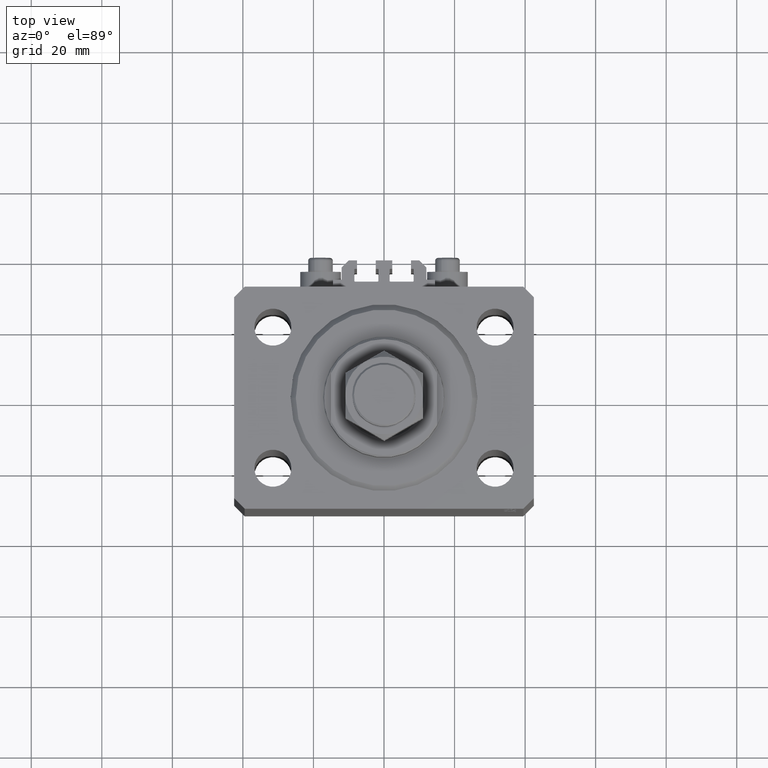
[diagram: clean part render]
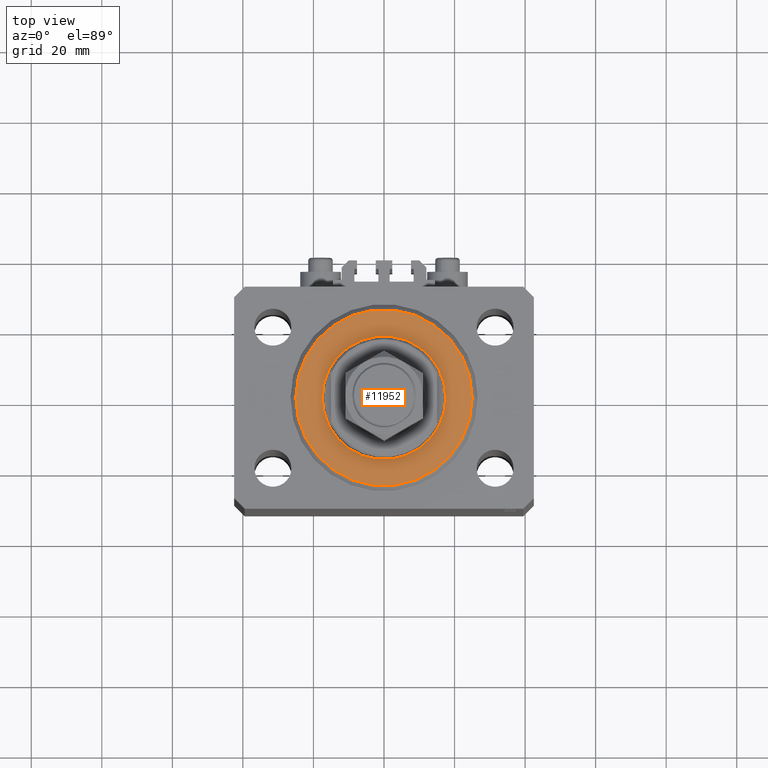
[diagram: same view with one face highlighted and labeled with its STEP entity id]
A machine part, top view. The second image highlights one B-rep face of the part: STEP entity #11952.
In plain terms, the highlighted planar face has unit normal (0, 0, -1).
Its self-contained STEP definition (entity closure, byte-faithful):
#239 = DIRECTION ( 'NONE',  ( 1.000000000000000000, 0.000000000000000000, 0.000000000000000000 ) ) ;
#512 = VERTEX_POINT ( 'NONE', #40431 ) ;
#2031 = VERTEX_POINT ( 'NONE', #5148 ) ;
#2597 = CIRCLE ( 'NONE', #44564, 24.99999999999995026 ) ;
#3345 = EDGE_CURVE ( 'NONE', #31605, #512, #19035, .T. ) ;
#3651 = PLANE ( 'NONE',  #32696 ) ;
#5148 = CARTESIAN_POINT ( 'NONE',  ( -17.50000000000000000, 2.143131898507868643E-15, 2.168404344971008868E-16 ) ) ;
#6029 = ORIENTED_EDGE ( 'NONE', *, *, #8869, .T. ) ;
#8869 = EDGE_CURVE ( 'NONE', #512, #31605, #2597, .T. ) ;
#9798 = EDGE_CURVE ( 'NONE', #2031, #34841, #34314, .T. ) ;
#10209 = DIRECTION ( 'NONE',  ( 1.000000000000000000, 0.000000000000000000, 0.000000000000000000 ) ) ;
#11044 = EDGE_LOOP ( 'NONE', ( #34057, #43450 ) ) ;
#11798 = DIRECTION ( 'NONE',  ( 1.000000000000000000, 0.000000000000000000, -0.000000000000000000 ) ) ;
#11952 = ADVANCED_FACE ( 'NONE', ( #34391, #26453 ), #3651, .F. ) ;
#15540 = CARTESIAN_POINT ( 'NONE',  ( 24.99999999999995026, 0.000000000000000000, 0.000000000000000000 ) ) ;
#15905 = AXIS2_PLACEMENT_3D ( 'NONE', #37198, #32762, #36464 ) ;
#18283 = CARTESIAN_POINT ( 'NONE',  ( 17.50000000000000000, 0.000000000000000000, 2.168404344971008868E-16 ) ) ;
#18629 = DIRECTION ( 'NONE',  ( -0.000000000000000000, -0.000000000000000000, -1.000000000000000000 ) ) ;
#19035 = CIRCLE ( 'NONE', #15905, 24.99999999999995026 ) ;
#19490 = CARTESIAN_POINT ( 'NONE',  ( 0.000000000000000000, 0.000000000000000000, 0.000000000000000000 ) ) ;
#23973 = EDGE_CURVE ( 'NONE', #34841, #2031, #27216, .T. ) ;
#25615 = AXIS2_PLACEMENT_3D ( 'NONE', #30722, #27238, #239 ) ;
#26453 = FACE_OUTER_BOUND ( 'NONE', #48466, .T. ) ;
#27216 = CIRCLE ( 'NONE', #25615, 17.50000000000000000 ) ;
#27238 = DIRECTION ( 'NONE',  ( 0.000000000000000000, 0.000000000000000000, 1.000000000000000000 ) ) ;
#30722 = CARTESIAN_POINT ( 'NONE',  ( 0.000000000000000000, 0.000000000000000000, 0.000000000000000000 ) ) ;
#31605 = VERTEX_POINT ( 'NONE', #15540 ) ;
#32696 = AXIS2_PLACEMENT_3D ( 'NONE', #19490, #45778, #11798 ) ;
#32762 = DIRECTION ( 'NONE',  ( -0.000000000000000000, -0.000000000000000000, -1.000000000000000000 ) ) ;
#33532 = CARTESIAN_POINT ( 'NONE',  ( 0.000000000000000000, 0.000000000000000000, 0.000000000000000000 ) ) ;
#34057 = ORIENTED_EDGE ( 'NONE', *, *, #23973, .T. ) ;
#34314 = CIRCLE ( 'NONE', #48564, 17.50000000000000000 ) ;
#34391 = FACE_BOUND ( 'NONE', #11044, .T. ) ;
#34841 = VERTEX_POINT ( 'NONE', #18283 ) ;
#36464 = DIRECTION ( 'NONE',  ( 1.000000000000000000, 0.000000000000000000, 0.000000000000000000 ) ) ;
#36759 = DIRECTION ( 'NONE',  ( 0.000000000000000000, 0.000000000000000000, 1.000000000000000000 ) ) ;
#37198 = CARTESIAN_POINT ( 'NONE',  ( 0.000000000000000000, 0.000000000000000000, 0.000000000000000000 ) ) ;
#40431 = CARTESIAN_POINT ( 'NONE',  ( -24.99999999999995026, 3.153465507804431248E-15, 0.000000000000000000 ) ) ;
#40751 = ORIENTED_EDGE ( 'NONE', *, *, #3345, .T. ) ;
#43450 = ORIENTED_EDGE ( 'NONE', *, *, #9798, .T. ) ;
#44419 = CARTESIAN_POINT ( 'NONE',  ( 0.000000000000000000, 0.000000000000000000, 0.000000000000000000 ) ) ;
#44564 = AXIS2_PLACEMENT_3D ( 'NONE', #33532, #18629, #48632 ) ;
#45778 = DIRECTION ( 'NONE',  ( 0.000000000000000000, 0.000000000000000000, 1.000000000000000000 ) ) ;
#48466 = EDGE_LOOP ( 'NONE', ( #40751, #6029 ) ) ;
#48564 = AXIS2_PLACEMENT_3D ( 'NONE', #44419, #36759, #10209 ) ;
#48632 = DIRECTION ( 'NONE',  ( 1.000000000000000000, 0.000000000000000000, 0.000000000000000000 ) ) ;